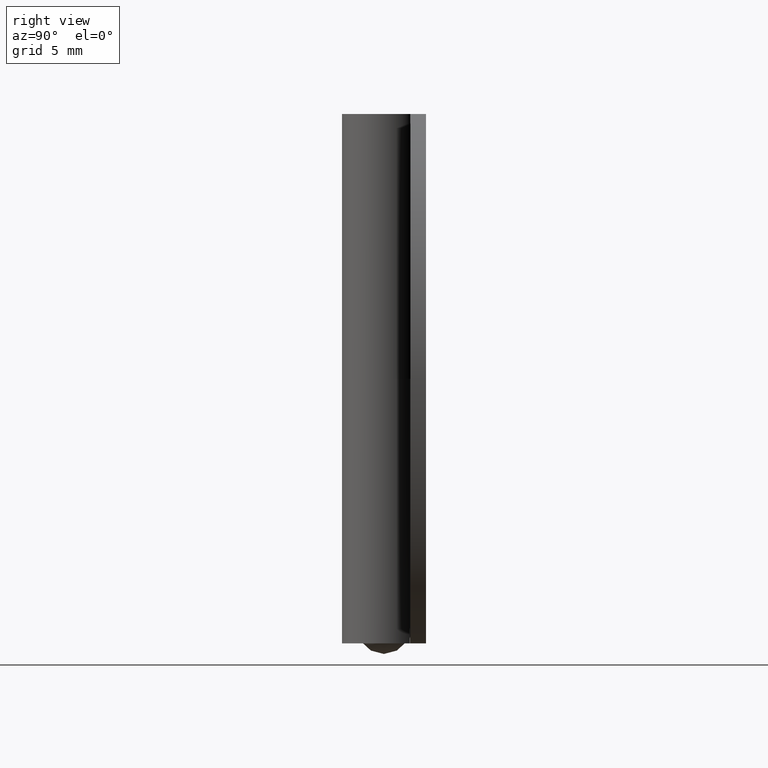
[diagram: clean part render]
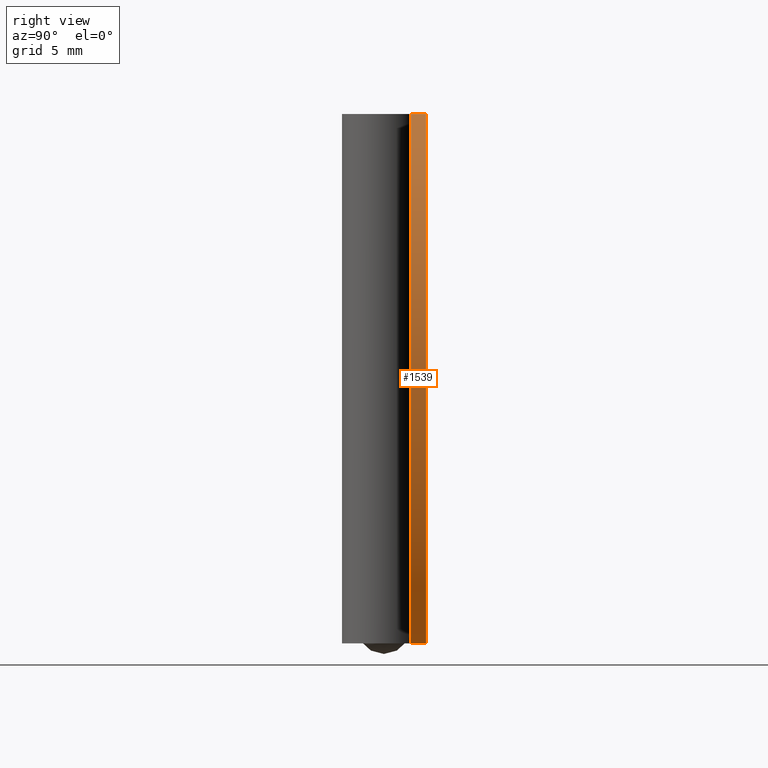
[diagram: same view with one face highlighted and labeled with its STEP entity id]
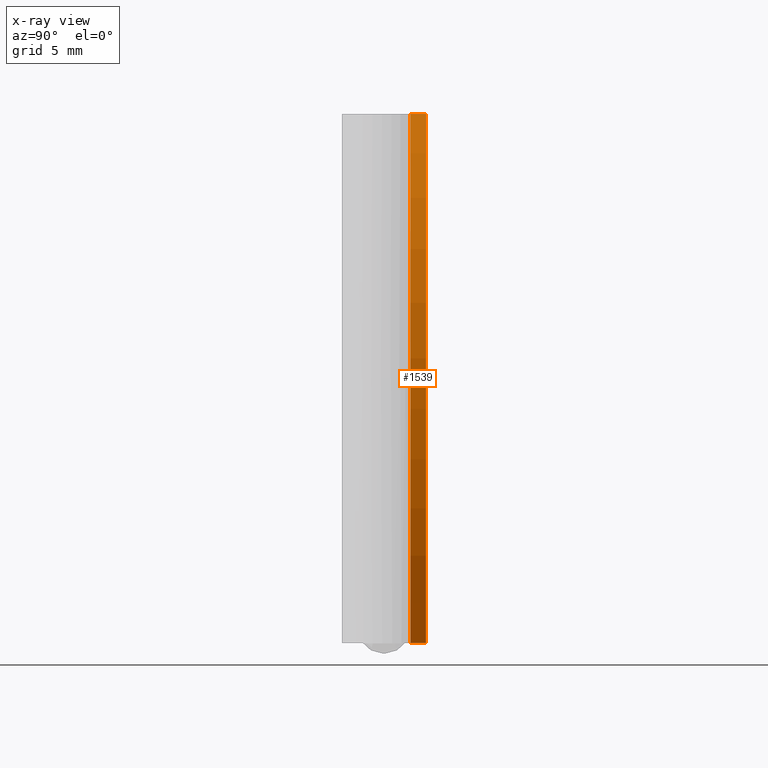
[diagram: x-ray of the same camera — body ghosted, the highlighted face saturated]
A machine part, right view. The second image highlights one B-rep face of the part: STEP entity #1539.
The next image is the same camera in x-ray: the body ghosted, the highlighted face saturated — about 0% of this face is hidden behind the body in this view.
In plain terms, the highlighted face is a freeform B-spline surface patch.
Its self-contained STEP definition (entity closure, byte-faithful):
#1479=CARTESIAN_POINT('',(10.823717612143691,1.969999975000000,-0.201550667791700));
#1480=CARTESIAN_POINT('',(10.823717612143691,3.230751025625000,-0.201550667791700));
#1481=CARTESIAN_POINT('',(29.426659537273185,1.969999975000001,20.881136390542899));
#1482=CARTESIAN_POINT('',(29.426659537273185,3.230751025624999,20.881136390542899));
#1483=CARTESIAN_POINT('',(10.045551689009031,1.969999975000000,41.250765754951168));
#1484=CARTESIAN_POINT('',(10.045551689009031,3.230751025625000,41.250765754951168));
#1492=(BOUNDED_SURFACE()B_SPLINE_SURFACE(1,2,((#1479,#1481,#1483),(#1480,#1482,#1484)),.UNSPECIFIED.,.F.,.F.,.U.)B_SPLINE_SURFACE_WITH_KNOTS((2,2),(3,3),(0.0,1.0),(0.0,47.729420032708482),.UNSPECIFIED.)GEOMETRIC_REPRESENTATION_ITEM()RATIONAL_B_SPLINE_SURFACE(((1.0,0.737277336810124,1.0),(1.0,0.737277336810124,1.0)))REPRESENTATION_ITEM('')SURFACE());
#1493=CARTESIAN_POINT('',(11.000003733954200,3.200000999999955,-1.776357E-014));
#1494=VERTEX_POINT('',#1493);
#1495=CARTESIAN_POINT('',(11.000002866977200,3.200001000000000,40.199997000000103));
#1496=VERTEX_POINT('',#1495);
#1497=CARTESIAN_POINT('',(11.000003733954189,3.200000999999955,-2.428613E-014));
#1498=CARTESIAN_POINT('',(28.426241958064857,3.200000999999956,20.099998875824625));
#1499=CARTESIAN_POINT('',(11.000002866977200,3.200000999999955,40.199997000000081));
#1507=(BOUNDED_CURVE()B_SPLINE_CURVE(2,(#1497,#1498,#1499),.UNSPECIFIED.,.F.,.U.)CURVE()GEOMETRIC_REPRESENTATION_ITEM()QUASI_UNIFORM_CURVE()RATIONAL_B_SPLINE_CURVE((1.0,0.755572979418123,1.0))REPRESENTATION_ITEM(''));
#1508=EDGE_CURVE('',#1494,#1496,#1507,.T.);
#1509=ORIENTED_EDGE('',*,*,#1508,.T.);
#1510=CARTESIAN_POINT('',(11.000002866977200,2.0,40.199997000000103));
#1511=VERTEX_POINT('',#1510);
#1512=CARTESIAN_POINT('',(11.000002866977200,2.0,40.199997000000103));
#1513=CARTESIAN_POINT('',(11.000002866977200,3.200001000000000,40.199997000000103));
#1514=QUASI_UNIFORM_CURVE('',1,(#1512,#1513),.UNSPECIFIED.,.F.,.U.);
#1515=EDGE_CURVE('',#1511,#1496,#1514,.T.);
#1516=ORIENTED_EDGE('',*,*,#1515,.F.);
#1517=CARTESIAN_POINT('',(11.000003733954200,2.0,-1.776357E-014));
#1518=VERTEX_POINT('',#1517);
#1519=CARTESIAN_POINT('',(11.000003733954189,2.0,-2.428613E-014));
#1520=CARTESIAN_POINT('',(28.426241958064857,2.000000000000000,20.099998875824625));
#1521=CARTESIAN_POINT('',(11.000002866977200,2.0,40.199997000000081));
#1529=(BOUNDED_CURVE()B_SPLINE_CURVE(2,(#1519,#1520,#1521),.UNSPECIFIED.,.F.,.U.)CURVE()GEOMETRIC_REPRESENTATION_ITEM()QUASI_UNIFORM_CURVE()RATIONAL_B_SPLINE_CURVE((1.0,0.755572979418123,1.0))REPRESENTATION_ITEM(''));
#1530=EDGE_CURVE('',#1518,#1511,#1529,.T.);
#1531=ORIENTED_EDGE('',*,*,#1530,.F.);
#1532=CARTESIAN_POINT('',(11.000003733954200,2.0,-1.776357E-014));
#1533=CARTESIAN_POINT('',(11.000003733954200,3.200000999999955,-1.776357E-014));
#1534=QUASI_UNIFORM_CURVE('',1,(#1532,#1533),.UNSPECIFIED.,.F.,.U.);
#1535=EDGE_CURVE('',#1518,#1494,#1534,.T.);
#1536=ORIENTED_EDGE('',*,*,#1535,.T.);
#1537=EDGE_LOOP('',(#1509,#1516,#1531,#1536));
#1538=FACE_OUTER_BOUND('',#1537,.T.);
#1539=ADVANCED_FACE('',(#1538),#1492,.T.);